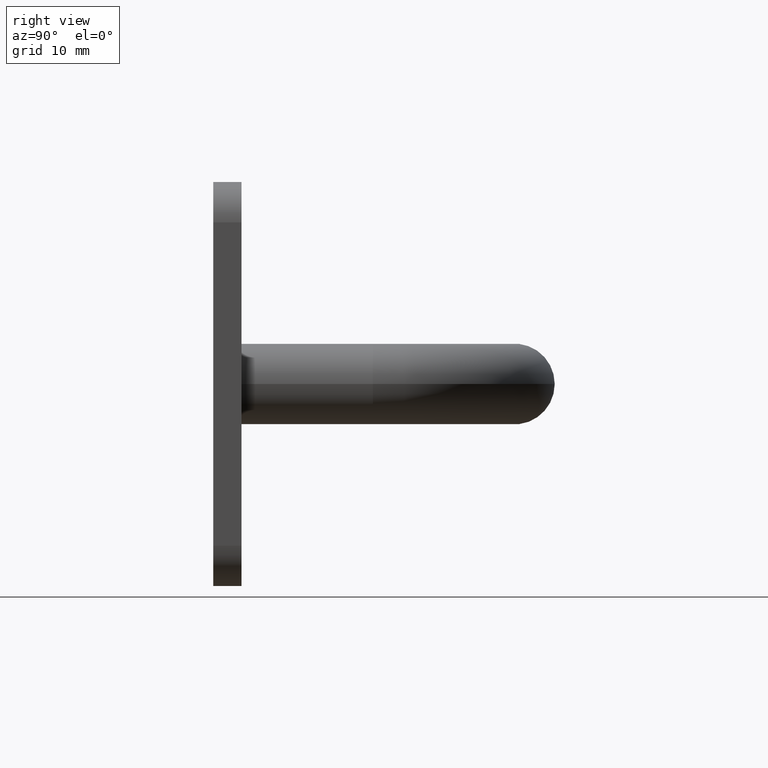
[diagram: clean part render]
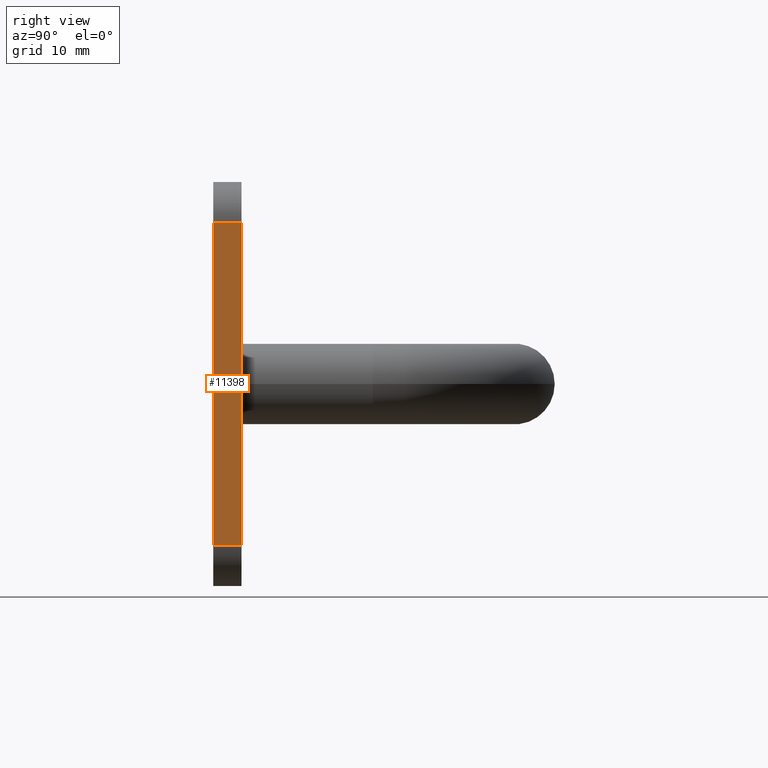
[diagram: same view with one face highlighted and labeled with its STEP entity id]
A machine part, right view. The second image highlights one B-rep face of the part: STEP entity #11398.
In plain terms, the highlighted planar face has unit normal (-1, 0, 0).
Its self-contained STEP definition (entity closure, byte-faithful):
#304 = LINE ( 'NONE', #2798, #9343 ) ;
#454 = EDGE_CURVE ( 'NONE', #3366, #6465, #10061, .T. ) ;
#505 = ORIENTED_EDGE ( 'NONE', *, *, #929, .T. ) ;
#929 = EDGE_CURVE ( 'NONE', #5700, #3366, #15047, .T. ) ;
#1334 = CARTESIAN_POINT ( 'NONE',  ( 25.00000000000000000, 0.0000000000000000000, 15.99999999999999600 ) ) ;
#1704 = LINE ( 'NONE', #7308, #13914 ) ;
#1906 = AXIS2_PLACEMENT_3D ( 'NONE', #5352, #10226, #7813 ) ;
#2139 = VERTEX_POINT ( 'NONE', #10692 ) ;
#2798 = CARTESIAN_POINT ( 'NONE',  ( 24.99999999999999300, 2.799999999999999800, -20.00000000000000000 ) ) ;
#3282 = EDGE_LOOP ( 'NONE', ( #13461, #3351, #5203, #505 ) ) ;
#3351 = ORIENTED_EDGE ( 'NONE', *, *, #14096, .T. ) ;
#3366 = VERTEX_POINT ( 'NONE', #1334 ) ;
#5203 = ORIENTED_EDGE ( 'NONE', *, *, #14800, .F. ) ;
#5352 = CARTESIAN_POINT ( 'NONE',  ( 24.99999999999999300, 2.799999999999999800, -20.00000000000000000 ) ) ;
#5407 = PLANE ( 'NONE',  #1906 ) ;
#5700 = VERTEX_POINT ( 'NONE', #9282 ) ;
#5887 = DIRECTION ( 'NONE',  ( 0.0000000000000000000, -1.000000000000000000, 0.0000000000000000000 ) ) ;
#6176 = DIRECTION ( 'NONE',  ( -0.0000000000000000000, 1.000000000000000000, -0.0000000000000000000 ) ) ;
#6465 = VERTEX_POINT ( 'NONE', #14655 ) ;
#7308 = CARTESIAN_POINT ( 'NONE',  ( 24.99999999999999300, 2.799999999999999800, -16.00000000000000000 ) ) ;
#7813 = DIRECTION ( 'NONE',  ( 1.734723475976807300E-016, 0.0000000000000000000, 1.000000000000000000 ) ) ;
#8481 = CARTESIAN_POINT ( 'NONE',  ( 24.99999999999999300, 0.0000000000000000000, -20.00000000000000000 ) ) ;
#8636 = DIRECTION ( 'NONE',  ( -1.734723475976807300E-016, -0.0000000000000000000, -1.000000000000000000 ) ) ;
#8933 = FACE_OUTER_BOUND ( 'NONE', #3282, .T. ) ;
#9282 = CARTESIAN_POINT ( 'NONE',  ( 25.00000000000000000, 2.799999999999999800, 15.99999999999999600 ) ) ;
#9343 = VECTOR ( 'NONE', #10008, 1000.000000000000000 ) ;
#10008 = DIRECTION ( 'NONE',  ( -1.734723475976807300E-016, -0.0000000000000000000, -1.000000000000000000 ) ) ;
#10061 = LINE ( 'NONE', #8481, #12840 ) ;
#10226 = DIRECTION ( 'NONE',  ( -1.000000000000000000, 0.0000000000000000000, 1.734723475976807300E-016 ) ) ;
#10692 = CARTESIAN_POINT ( 'NONE',  ( 24.99999999999999300, 2.799999999999999800, -16.00000000000000000 ) ) ;
#11352 = CARTESIAN_POINT ( 'NONE',  ( 25.00000000000000000, 2.799999999999999800, 15.99999999999999600 ) ) ;
#11398 = ADVANCED_FACE ( 'NONE', ( #8933 ), #5407, .F. ) ;
#11531 = VECTOR ( 'NONE', #5887, 1000.000000000000000 ) ;
#12840 = VECTOR ( 'NONE', #8636, 1000.000000000000000 ) ;
#13461 = ORIENTED_EDGE ( 'NONE', *, *, #454, .T. ) ;
#13914 = VECTOR ( 'NONE', #6176, 1000.000000000000000 ) ;
#14096 = EDGE_CURVE ( 'NONE', #6465, #2139, #1704, .T. ) ;
#14655 = CARTESIAN_POINT ( 'NONE',  ( 24.99999999999999300, 0.0000000000000000000, -16.00000000000000000 ) ) ;
#14800 = EDGE_CURVE ( 'NONE', #5700, #2139, #304, .T. ) ;
#15047 = LINE ( 'NONE', #11352, #11531 ) ;